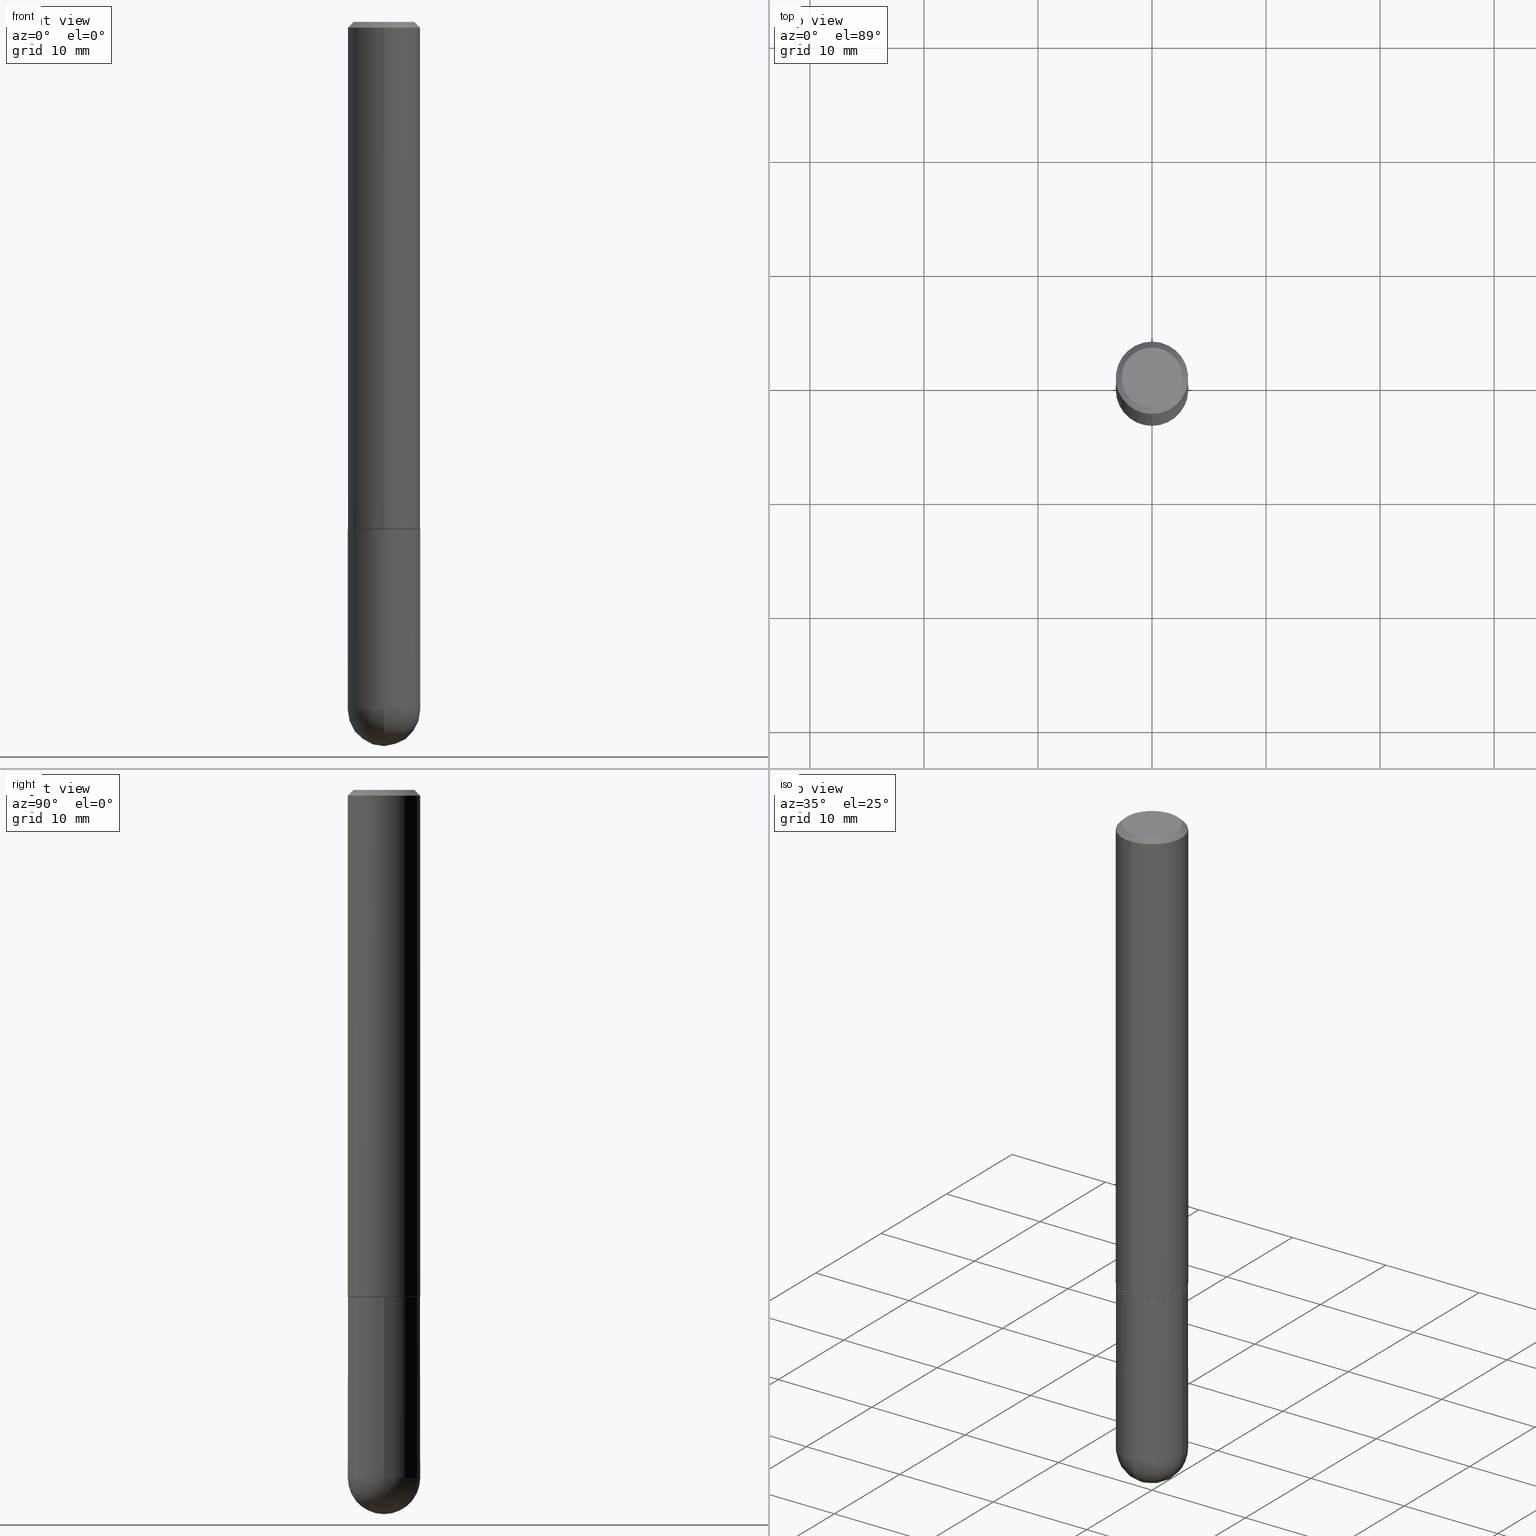
[diagram: canonical four-view strip — front | top / right | iso, engineering-drawing reading convention]
A machine part, canonical four-view strip (front | top / right | iso — engineering-drawing reading convention). The complete STEP part file that produces these views, byte-faithful:
ISO-10303-21;
HEADER;
FILE_DESCRIPTION (( 'STEP AP203' ),
    '1' );
FILE_NAME ('39332.STEP',
    '2024-02-21T19:34:02',
    ( '' ),
    ( '' ),
    'SwSTEP 2.0',
    'SolidWorks 2023',
    '' );
FILE_SCHEMA (( 'CONFIG_CONTROL_DESIGN' ));
ENDSEC;

DATA;
#1 = CARTESIAN_POINT ( 'NONE',  ( -8.658873720330540358E-16, -0.1240000000000061053, -1.749999999999999556 ) ) ;
#2 = APPROVAL_PERSON_ORGANIZATION ( #103, #196, #138 ) ;
#3 = DIRECTION ( 'NONE',  ( -2.445468806185136597E-29, 3.491481338843145583E-15, 1.000000000000000000 ) ) ;
#4 = EDGE_CURVE ( 'NONE', #107, #319, #363, .T. ) ;
#5 = LINE ( 'NONE', #217, #336 ) ;
#6 = LINE ( 'NONE', #159, #23 ) ;
#7 = DATE_AND_TIME ( #164, #308 ) ;
#8 = VECTOR ( 'NONE', #131, 39.37007874015748143 ) ;
#9 = APPROVAL ( #42, 'UNSPECIFIED' ) ;
#10 = EDGE_LOOP ( 'NONE', ( #160, #44, #104, #205 ) ) ;
#11 = EDGE_LOOP ( 'NONE', ( #32, #266, #256, #381, #195 ) ) ;
#12 = PERSON_AND_ORGANIZATION ( #101, #75 ) ;
#13 = VERTEX_POINT ( 'NONE', #334 ) ;
#14 = PERSON_AND_ORGANIZATION ( #101, #75 ) ;
#15 = ORIENTED_EDGE ( 'NONE', *, *, #401, .F. ) ;
#16 = AXIS2_PLACEMENT_3D ( 'NONE', #276, #337, #344 ) ;
#17 = AXIS2_PLACEMENT_3D ( 'NONE', #316, #33, #31 ) ;
#18 = CARTESIAN_POINT ( 'NONE',  ( -0.1250000000000000000, 8.881784197001252323E-16, -6.148668862818632227E-30 ) ) ;
#19 = DIRECTION ( 'NONE',  ( -6.982962677686265133E-15, -1.000000000000000000, 4.370956789862812472E-15 ) ) ;
#20 = DIRECTION ( 'NONE',  ( 2.445706133332774021E-29, -3.491141472859906642E-15, -1.000000000000000000 ) ) ;
#21 = EDGE_CURVE ( 'NONE', #353, #292, #305, .T. ) ;
#22 = VECTOR ( 'NONE', #280, 39.37007874015748143 ) ;
#23 = VECTOR ( 'NONE', #323, 39.37007874015748143 ) ;
#24 = CARTESIAN_POINT ( 'NONE',  ( 5.807988414689700538E-29, -8.292268179752471696E-15, -2.375000000000000000 ) ) ;
#25 = SHAPE_DEFINITION_REPRESENTATION ( #367, #81 ) ;
#26 = CARTESIAN_POINT ( 'NONE',  ( 4.891412266665553962E-31, -6.982282945719821124E-17, -0.02000000000000002470 ) ) ;
#27 = SPHERICAL_SURFACE ( 'NONE', #67, 0.1250000000000001943 ) ;
#28 = AXIS2_PLACEMENT_3D ( 'NONE', #174, #306, #19 ) ;
#29 = CARTESIAN_POINT ( 'NONE',  ( 7.332110811570579257E-16, 0.1049999999999999961, -3.559164163891591830E-16 ) ) ;
#30 = EDGE_LOOP ( 'NONE', ( #165, #140 ) ) ;
#31 = DIRECTION ( 'NONE',  ( 1.000000000000000000, -6.982962677686266711E-15, 4.876176775795935793E-29 ) ) ;
#32 = ORIENTED_EDGE ( 'NONE', *, *, #21, .F. ) ;
#33 = DIRECTION ( 'NONE',  ( -2.445468806185136597E-29, 3.491481338843145583E-15, 1.000000000000000000 ) ) ;
#34 = ORIENTED_EDGE ( 'NONE', *, *, #43, .T. ) ;
#35 = EDGE_CURVE ( 'NONE', #13, #328, #175, .T. ) ;
#36 = AXIS2_PLACEMENT_3D ( 'NONE', #24, #248, #343 ) ;
#37 = LOCAL_TIME ( 14, 34, 2.000000000000000000, #86 ) ;
#38 = FACE_OUTER_BOUND ( 'NONE', #11, .T. ) ;
#39 = CARTESIAN_POINT ( 'NONE',  ( 8.728703347107837333E-16, 0.1249999999999999306, -0.02000000000000046185 ) ) ;
#40 = DATE_AND_TIME ( #79, #234 ) ;
#41 = ORIENTED_EDGE ( 'NONE', *, *, #206, .F. ) ;
#42 = APPROVAL_STATUS ( 'not_yet_approved' ) ;
#43 = EDGE_CURVE ( 'NONE', #326, #13, #137, .T. ) ;
#44 = ORIENTED_EDGE ( 'NONE', *, *, #72, .T. ) ;
#45 = APPLICATION_PROTOCOL_DEFINITION ( 'international standard', 'config_control_design', 1994, #355 ) ;
#46 = ORIENTED_EDGE ( 'NONE', *, *, #65, .F. ) ;
#47 = EDGE_LOOP ( 'NONE', ( #125, #299, #171, #395 ) ) ;
#48 = PERSON_AND_ORGANIZATION ( #101, #75 ) ;
#49 = ORIENTED_EDGE ( 'NONE', *, *, #330, .F. ) ;
#50 = CIRCLE ( 'NONE', #383, 0.1250000000000000000 ) ;
#51 = UNCERTAINTY_MEASURE_WITH_UNIT (LENGTH_MEASURE( 1.000000000000000082E-05 ), #203, 'distance_accuracy_value', 'NONE');
#52 = CARTESIAN_POINT ( 'NONE',  ( 0.1250000000000000000, -8.074050596074771916E-15, -2.375000000000000000 ) ) ;
#53 = DATE_AND_TIME ( #88, #37 ) ;
#54 = ADVANCED_FACE ( 'NONE', ( #407 ), #376, .F. ) ;
#55 = DIRECTION ( 'NONE',  ( -1.000000000000000000, 6.982962677686265922E-15, -4.883557194083112901E-29 ) ) ;
#56 = FACE_OUTER_BOUND ( 'NONE', #359, .T. ) ;
#57 = AXIS2_PLACEMENT_3D ( 'NONE', #26, #307, #148 ) ;
#58 = AXIS2_PLACEMENT_3D ( 'NONE', #153, #410, #379 ) ;
#59 = FACE_OUTER_BOUND ( 'NONE', #264, .T. ) ;
#60 = DIRECTION ( 'NONE',  ( -2.445706133332774021E-29, 3.491141472859906642E-15, 1.000000000000000000 ) ) ;
#61 = CARTESIAN_POINT ( 'NONE',  ( 4.279570410823989044E-29, -6.110092342975505460E-15, -1.750000000000000222 ) ) ;
#62 = CIRCLE ( 'NONE', #322, 0.1250000000000000000 ) ;
#63 = FACE_OUTER_BOUND ( 'NONE', #272, .T. ) ;
#64 = CYLINDRICAL_SURFACE ( 'NONE', #17, 0.1250000000000000000 ) ;
#65 = EDGE_CURVE ( 'NONE', #107, #326, #146, .T. ) ;
#66 = CARTESIAN_POINT ( 'NONE',  ( 5.476868636775814291E-29, -8.766450547892521992E-15, -2.375000000000000000 ) ) ;
#67 = AXIS2_PLACEMENT_3D ( 'NONE', #66, #223, #350 ) ;
#68 = SECURITY_CLASSIFICATION ( '', '', #340 ) ;
#69 = PLANE ( 'NONE',  #297 ) ;
#70 = LINE ( 'NONE', #162, #8 ) ;
#71 = ORIENTED_EDGE ( 'NONE', *, *, #375, .F. ) ;
#72 = EDGE_CURVE ( 'NONE', #326, #412, #241, .T. ) ;
#73 = DIRECTION ( 'NONE',  ( -4.851104656540959542E-15, -0.7071067811865493491, -0.7071067811865457964 ) ) ;
#74 = EDGE_LOOP ( 'NONE', ( #393, #133, #303, #136 ) ) ;
#75 = ORGANIZATION ( 'UNSPECIFIED', 'UNSPECIFIED', '' ) ;
#76 = ORIENTED_EDGE ( 'NONE', *, *, #21, .T. ) ;
#77 = EDGE_CURVE ( 'NONE', #226, #198, #390, .T. ) ;
#78 = ORIENTED_EDGE ( 'NONE', *, *, #72, .F. ) ;
#79 = CALENDAR_DATE ( 2024, 21, 2 ) ;
#80 = DIRECTION ( 'NONE',  ( -6.982962677686265922E-15, -1.000000000000000000, 4.406206441393973340E-15 ) ) ;
#81 = ADVANCED_BREP_SHAPE_REPRESENTATION ( '39332', ( #384, #110, #342 ), #404 ) ;
#82 = AXIS2_PLACEMENT_3D ( 'NONE', #211, #275, #339 ) ;
#83 = CARTESIAN_POINT ( 'NONE',  ( 5.807988414689700538E-29, -8.292268179752471696E-15, -2.375000000000000000 ) ) ;
#84 = AXIS2_PLACEMENT_3D ( 'NONE', #349, #97, #252 ) ;
#85 = CARTESIAN_POINT ( 'NONE',  ( 4.891412266665553962E-31, -6.982282945719821124E-17, -0.02000000000000002470 ) ) ;
#86 = COORDINATED_UNIVERSAL_TIME_OFFSET ( 5, 0, .BEHIND. ) ;
#87 = CARTESIAN_POINT ( 'NONE',  ( 4.891412266665553962E-31, -6.982282945719821124E-17, -0.02000000000000002470 ) ) ;
#88 = CALENDAR_DATE ( 2024, 21, 2 ) ;
#89 = CARTESIAN_POINT ( 'NONE',  ( 5.476868636775814291E-29, -8.766450547892521992E-15, -2.375000000000000000 ) ) ;
#90 = CONICAL_SURFACE ( 'NONE', #191, 0.1250000000000000000, 0.7853981633974473908 ) ;
#91 = DIRECTION ( 'NONE',  ( -7.105427357601000281E-15, -1.000000000000000000, 0.000000000000000000 ) ) ;
#92 = ADVANCED_FACE ( 'NONE', ( #120 ), #208, .T. ) ;
#93 = CYLINDRICAL_SURFACE ( 'NONE', #161, 0.1250000000000000000 ) ;
#94 = DIRECTION ( 'NONE',  ( -2.445706133332774021E-29, 3.491141472859906642E-15, 1.000000000000000000 ) ) ;
#95 = AXIS2_PLACEMENT_3D ( 'NONE', #61, #183, #315 ) ;
#96 = CC_DESIGN_DATE_AND_TIME_ASSIGNMENT ( #309, #212, ( #68 ) ) ;
#97 = DIRECTION ( 'NONE',  ( -2.445468806185136597E-29, 3.491481338843145583E-15, 1.000000000000000000 ) ) ;
#98 = DIRECTION ( 'NONE',  ( 4.937700262164543309E-15, 0.7071067811865444641, -0.7071067811865506814 ) ) ;
#99 = CYLINDRICAL_SURFACE ( 'NONE', #200, 0.1250000000000001110 ) ;
#100 = ORIENTED_EDGE ( 'NONE', *, *, #265, .T. ) ;
#101 = PERSON ( 'UNSPECIFIED', 'UNSPECIFIED', 'UNSPECIFIED', ('UNSPECIFIED'), ('UNSPECIFIED'), ('UNSPECIFIED') ) ;
#102 = AXIS2_PLACEMENT_3D ( 'NONE', #374, #144, #244 ) ;
#103 = PERSON_AND_ORGANIZATION ( #101, #75 ) ;
#104 = ORIENTED_EDGE ( 'NONE', *, *, #147, .F. ) ;
#105 = CARTESIAN_POINT ( 'NONE',  ( 4.279570410823989044E-29, -6.110092342975505460E-15, -1.750000000000000222 ) ) ;
#106 = DIRECTION ( 'NONE',  ( -2.445468806185136877E-29, 3.491481338843145188E-15, 1.000000000000000000 ) ) ;
#107 = VERTEX_POINT ( 'NONE', #142 ) ;
#108 = APPROVAL_ROLE ( '' ) ;
#109 = CIRCLE ( 'NONE', #58, 0.1049999999999999961 ) ;
#110 = MANIFOLD_SOLID_BREP ( 'Body-Move/Copy2[2]', #278 ) ;
#111 = ORIENTED_EDGE ( 'NONE', *, *, #210, .F. ) ;
#112 = CARTESIAN_POINT ( 'NONE',  ( 8.030407079339207309E-16, 0.1049999999999999961, -3.452629781280282099E-16 ) ) ;
#113 = DIMENSIONAL_EXPONENTS ( 1.000000000000000000, 0.000000000000000000, 0.000000000000000000, 0.000000000000000000, 0.000000000000000000, 0.000000000000000000, 0.000000000000000000 ) ;
#114 = CARTESIAN_POINT ( 'NONE',  ( 4.279985733332354606E-29, -6.109497577504836920E-15, -1.750000000000000222 ) ) ;
#115 = APPROVAL_DATE_TIME ( #40, #196 ) ;
#116 = DIRECTION ( 'NONE',  ( 6.982962677686265133E-15, 1.000000000000000000, 0.000000000000000000 ) ) ;
#117 = CIRCLE ( 'NONE', #347, 0.1250000000000000000 ) ;
#118 = EDGE_CURVE ( 'NONE', #231, #226, #370, .T. ) ;
#119 = DIRECTION ( 'NONE',  ( -6.982962677686265922E-15, -1.000000000000000000, 4.406206441393973340E-15 ) ) ;
#120 = FACE_OUTER_BOUND ( 'NONE', #74, .T. ) ;
#121 = CARTESIAN_POINT ( 'NONE',  ( 8.881784197001260212E-16, 0.1250000000000001110, -4.363926841074887247E-16 ) ) ;
#122 = AXIS2_PLACEMENT_3D ( 'NONE', #85, #20, #145 ) ;
#123 = DIRECTION ( 'NONE',  ( 6.982962677686265922E-15, 1.000000000000000000, -3.491141472859906642E-15 ) ) ;
#124 = DIRECTION ( 'NONE',  ( -6.982962677686265922E-15, -1.000000000000000000, 4.406206441393973340E-15 ) ) ;
#125 = ORIENTED_EDGE ( 'NONE', *, *, #389, .F. ) ;
#126 = CC_DESIGN_PERSON_AND_ORGANIZATION_ASSIGNMENT ( #333, #173, ( #398 ) ) ;
#127 = DIRECTION ( 'NONE',  ( 2.445706133332773460E-29, -3.491141472859906642E-15, -1.000000000000000000 ) ) ;
#128 = CC_DESIGN_APPROVAL ( #9, ( #394 ) ) ;
#129 = CARTESIAN_POINT ( 'NONE',  ( -8.881784197000694204E-16, -0.1250000000000086320, -2.374999999999999556 ) ) ;
#130 = FACE_OUTER_BOUND ( 'NONE', #10, .T. ) ;
#131 = DIRECTION ( 'NONE',  ( -4.937700262164969294E-15, -0.7071067811866054154, 0.7071067811864896191 ) ) ;
#132 = VERTEX_POINT ( 'NONE', #214 ) ;
#133 = ORIENTED_EDGE ( 'NONE', *, *, #206, .T. ) ;
#134 = ADVANCED_FACE ( 'NONE', ( #59 ), #176, .T. ) ;
#135 = APPLICATION_PROTOCOL_DEFINITION ( 'international standard', 'config_control_design', 1994, #273 ) ;
#136 = ORIENTED_EDGE ( 'NONE', *, *, #77, .F. ) ;
#137 = CIRCLE ( 'NONE', #102, 0.1250000000000002498 ) ;
#138 = APPROVAL_ROLE ( '' ) ;
#139 = CC_DESIGN_SECURITY_CLASSIFICATION ( #68, ( #398 ) ) ;
#140 = ORIENTED_EDGE ( 'NONE', *, *, #172, .T. ) ;
#141 = CALENDAR_DATE ( 2024, 21, 2 ) ;
#142 = CARTESIAN_POINT ( 'NONE',  ( 8.846257060213682142E-16, 0.1239999999999938790, -1.750000000000000666 ) ) ;
#143 = EDGE_CURVE ( 'NONE', #353, #226, #290, .T. ) ;
#144 = DIRECTION ( 'NONE',  ( -2.445706133332774021E-29, 3.491141472859906642E-15, 1.000000000000000000 ) ) ;
#145 = DIRECTION ( 'NONE',  ( 6.982962677686265922E-15, 1.000000000000000000, -3.483106191921935554E-15 ) ) ;
#146 = LINE ( 'NONE', #246, #22 ) ;
#147 = EDGE_CURVE ( 'NONE', #328, #412, #213, .T. ) ;
#148 = DIRECTION ( 'NONE',  ( -6.982962677686265922E-15, -1.000000000000000000, 3.483106191921935554E-15 ) ) ;
#149 = CARTESIAN_POINT ( 'NONE',  ( 8.881784197001479121E-16, 0.1249999999999941019, -1.749000000000000554 ) ) ;
#150 = FACE_OUTER_BOUND ( 'NONE', #154, .T. ) ;
#151 = CARTESIAN_POINT ( 'NONE',  ( 5.807988414689700538E-29, -8.292268179752471696E-15, -2.375000000000000000 ) ) ;
#152 = ORIENTED_EDGE ( 'NONE', *, *, #65, .T. ) ;
#153 = CARTESIAN_POINT ( 'NONE',  ( -5.211035859266013735E-46, 7.438532028397375271E-32, 2.130687652226194918E-17 ) ) ;
#154 = EDGE_LOOP ( 'NONE', ( #46, #163, #185, #262 ) ) ;
#155 = AXIS2_PLACEMENT_3D ( 'NONE', #114, #368, #80 ) ;
#156 = CC_DESIGN_APPROVAL ( #196, ( #398 ) ) ;
#157 = ADVANCED_FACE ( 'NONE', ( #56 ), #90, .T. ) ;
#158 = DATE_AND_TIME ( #194, #364 ) ;
#159 = CARTESIAN_POINT ( 'NONE',  ( 0.1250000000000000000, -8.728703347107833388E-16, 6.095220969744919741E-30 ) ) ;
#160 = ORIENTED_EDGE ( 'NONE', *, *, #210, .T. ) ;
#161 = AXIS2_PLACEMENT_3D ( 'NONE', #388, #3, #318 ) ;
#162 = CARTESIAN_POINT ( 'NONE',  ( -8.658873720330540358E-16, -0.1240000000000061053, -1.749999999999999556 ) ) ;
#163 = ORIENTED_EDGE ( 'NONE', *, *, #4, .T. ) ;
#164 = CALENDAR_DATE ( 2024, 21, 2 ) ;
#165 = ORIENTED_EDGE ( 'NONE', *, *, #257, .T. ) ;
#166 = MECHANICAL_CONTEXT ( 'NONE', #273, 'mechanical' ) ;
#167 = ORIENTED_EDGE ( 'NONE', *, *, #147, .T. ) ;
#168 = PRODUCT ( '39332', '39332', '', ( #166 ) ) ;
#169 = COORDINATED_UNIVERSAL_TIME_OFFSET ( 5, 0, .BEHIND. ) ;
#170 = DESIGN_CONTEXT ( 'detailed design', #355, 'design' ) ;
#171 = ORIENTED_EDGE ( 'NONE', *, *, #330, .T. ) ;
#172 = EDGE_CURVE ( 'NONE', #296, #397, #269, .T. ) ;
#173 = PERSON_AND_ORGANIZATION_ROLE ( 'creator' ) ;
#174 = CARTESIAN_POINT ( 'NONE',  ( 4.277540027199021844E-29, -6.106006436031975850E-15, -1.749000000000000110 ) ) ;
#175 = LINE ( 'NONE', #372, #254 ) ;
#176 = CONICAL_SURFACE ( 'NONE', #233, 0.1239999999999999991, 0.7853981633975336552 ) ;
#177 = DIRECTION ( 'NONE',  ( 6.982962677686265922E-15, 1.000000000000000000, -3.483106191921935554E-15 ) ) ;
#178 = CIRCLE ( 'NONE', #84, 0.1250000000000000000 ) ;
#179 = ADVANCED_FACE ( 'NONE', ( #216 ), #402, .T. ) ;
#180 = PERSON_AND_ORGANIZATION ( #101, #75 ) ;
#181 = DIRECTION ( 'NONE',  ( 1.000000000000000000, -6.982962677686270655E-15, 0.000000000000000000 ) ) ;
#182 = CARTESIAN_POINT ( 'NONE',  ( 5.476868636775814291E-29, -8.766450547892521992E-15, -2.375000000000000000 ) ) ;
#183 = DIRECTION ( 'NONE',  ( -2.445468806185136597E-29, 3.491481338843145583E-15, 1.000000000000000000 ) ) ;
#184 = AXIS2_PLACEMENT_3D ( 'NONE', #83, #207, #181 ) ;
#185 = ORIENTED_EDGE ( 'NONE', *, *, #401, .T. ) ;
#186 = CC_DESIGN_PERSON_AND_ORGANIZATION_ASSIGNMENT ( #14, #267, ( #168 ) ) ;
#187 = CARTESIAN_POINT ( 'NONE',  ( 4.279985733332354606E-29, -6.109497577504836920E-15, -1.750000000000000222 ) ) ;
#188 = CARTESIAN_POINT ( 'NONE',  ( -8.575622497214408537E-16, -0.1250000000000000555, -0.01999999999999959102 ) ) ;
#189 = ORIENTED_EDGE ( 'NONE', *, *, #4, .F. ) ;
#190 = DIRECTION ( 'NONE',  ( -2.445706133332773460E-29, 3.491141472859906642E-15, 1.000000000000000000 ) ) ;
#191 = AXIS2_PLACEMENT_3D ( 'NONE', #87, #282, #177 ) ;
#192 = CIRCLE ( 'NONE', #377, 0.1250000000000001943 ) ;
#193 = DIRECTION ( 'NONE',  ( -6.982962677686265922E-15, -1.000000000000000000, 3.483106191921935554E-15 ) ) ;
#194 = CALENDAR_DATE ( 2024, 21, 2 ) ;
#195 = ORIENTED_EDGE ( 'NONE', *, *, #354, .F. ) ;
#196 = APPROVAL ( #365, 'UNSPECIFIED' ) ;
#197 =( NAMED_UNIT ( * ) SI_UNIT ( $, .STERADIAN. ) SOLID_ANGLE_UNIT ( ) );
#198 = VERTEX_POINT ( 'NONE', #52 ) ;
#199 = CLOSED_SHELL ( 'NONE', ( #271, #302, #92, #54, #288 ) ) ;
#200 = AXIS2_PLACEMENT_3D ( 'NONE', #260, #224, #284 ) ;
#201 = COORDINATED_UNIVERSAL_TIME_OFFSET ( 5, 0, .BEHIND. ) ;
#202 = ORIENTED_EDGE ( 'NONE', *, *, #265, .F. ) ;
#203 =( CONVERSION_BASED_UNIT ( 'INCH', #329 ) LENGTH_UNIT ( ) NAMED_UNIT ( #113 ) );
#204 = ORIENTED_EDGE ( 'NONE', *, *, #354, .T. ) ;
#205 = ORIENTED_EDGE ( 'NONE', *, *, #35, .F. ) ;
#206 = EDGE_CURVE ( 'NONE', #231, #391, #192, .T. ) ;
#207 = DIRECTION ( 'NONE',  ( -2.445468806185136597E-29, 3.491481338843145583E-15, 1.000000000000000000 ) ) ;
#208 = SPHERICAL_SURFACE ( 'NONE', #314, 0.1250000000000001943 ) ;
#209 = APPROVAL_DATE_TIME ( #53, #360 ) ;
#210 = EDGE_CURVE ( 'NONE', #13, #326, #352, .T. ) ;
#211 = CARTESIAN_POINT ( 'NONE',  ( 8.728703347108260359E-16, 0.1249999999999938799, -1.750000000000000666 ) ) ;
#212 = DATE_TIME_ROLE ( 'classification_date' ) ;
#213 = CIRCLE ( 'NONE', #57, 0.1250000000000000000 ) ;
#214 = CARTESIAN_POINT ( 'NONE',  ( 0.1250000000000000000, -6.982962677686288010E-15, -1.750000000000000222 ) ) ;
#215 = APPROVAL_PERSON_ORGANIZATION ( #180, #360, #274 ) ;
#216 = FACE_OUTER_BOUND ( 'NONE', #238, .T. ) ;
#217 = CARTESIAN_POINT ( 'NONE',  ( 8.728703347107837333E-16, 0.1249999999999999306, -0.02000000000000046185 ) ) ;
#218 = ADVANCED_FACE ( 'NONE', ( #403 ), #255, .T. ) ;
#219 = DIRECTION ( 'NONE',  ( -2.445468806185136597E-29, 3.491481338843145583E-15, 1.000000000000000000 ) ) ;
#220 = AXIS2_PLACEMENT_3D ( 'NONE', #89, #239, #91 ) ;
#221 = AXIS2_PLACEMENT_3D ( 'NONE', #293, #94, #222 ) ;
#222 = DIRECTION ( 'NONE',  ( -6.982962677686265922E-15, -1.000000000000000000, 4.406206441393973340E-15 ) ) ;
#223 = DIRECTION ( 'NONE',  ( -1.000000000000000000, 6.982962677686265922E-15, -4.883557194083112901E-29 ) ) ;
#224 = DIRECTION ( 'NONE',  ( -2.445706133332774021E-29, 3.491141472859906642E-15, 1.000000000000000000 ) ) ;
#225 = PRODUCT_RELATED_PRODUCT_CATEGORY ( 'detail', '', ( #168 ) ) ;
#226 = VERTEX_POINT ( 'NONE', #129 ) ;
#227 = VECTOR ( 'NONE', #106, 39.37007874015748143 ) ;
#228 = CARTESIAN_POINT ( 'NONE',  ( 8.728703347108403340E-16, 0.1249999999999915623, -2.375000000000000888 ) ) ;
#229 = ORIENTED_EDGE ( 'NONE', *, *, #382, .F. ) ;
#230 = DIRECTION ( 'NONE',  ( -2.445468806185136597E-29, 3.491481338843145583E-15, 1.000000000000000000 ) ) ;
#231 = VERTEX_POINT ( 'NONE', #320 ) ;
#232 = ORIENTED_EDGE ( 'NONE', *, *, #324, .T. ) ;
#233 = AXIS2_PLACEMENT_3D ( 'NONE', #310, #369, #119 ) ;
#234 = LOCAL_TIME ( 14, 34, 2.000000000000000000, #356 ) ;
#235 = ORIENTED_EDGE ( 'NONE', *, *, #312, .T. ) ;
#236 = CARTESIAN_POINT ( 'NONE',  ( 0.000000000000000000, 0.000000000000000000, 0.000000000000000000 ) ) ;
#237 = ADVANCED_FACE ( 'NONE', ( #380 ), #253, .F. ) ;
#238 = EDGE_LOOP ( 'NONE', ( #78, #34, #331, #301 ) ) ;
#239 = DIRECTION ( 'NONE',  ( -1.000000000000000000, 7.105427357601001070E-15, -4.926315508542082329E-29 ) ) ;
#240 = APPROVAL_PERSON_ORGANIZATION ( #327, #9, #108 ) ;
#241 = LINE ( 'NONE', #121, #335 ) ;
#242 = CC_DESIGN_PERSON_AND_ORGANIZATION_ASSIGNMENT ( #48, #245, ( #68 ) ) ;
#243 = PERSON_AND_ORGANIZATION ( #101, #75 ) ;
#244 = DIRECTION ( 'NONE',  ( -6.982962677686265133E-15, -1.000000000000000000, 4.370956789862812472E-15 ) ) ;
#245 = PERSON_AND_ORGANIZATION_ROLE ( 'classification_officer' ) ;
#246 = CARTESIAN_POINT ( 'NONE',  ( 8.810729923425669213E-16, 0.1239999999999938790, -1.750000000000000666 ) ) ;
#247 = CIRCLE ( 'NONE', #221, 0.1239999999999999991 ) ;
#248 = DIRECTION ( 'NONE',  ( -2.445468806185136597E-29, 3.491481338843145583E-15, 1.000000000000000000 ) ) ;
#249 = CIRCLE ( 'NONE', #95, 0.1250000000000000000 ) ;
#250 = DIRECTION ( 'NONE',  ( -6.982962677686265922E-15, -1.000000000000000000, 3.491141472859906642E-15 ) ) ;
#251 = ADVANCED_FACE ( 'NONE', ( #63 ), #69, .F. ) ;
#252 = DIRECTION ( 'NONE',  ( 1.000000000000000000, -6.982962677686270655E-15, 0.000000000000000000 ) ) ;
#253 = PLANE ( 'NONE',  #304 ) ;
#254 = VECTOR ( 'NONE', #281, 39.37007874015748143 ) ;
#255 = CONICAL_SURFACE ( 'NONE', #122, 0.1250000000000000000, 0.7853981633974473908 ) ;
#256 = ORIENTED_EDGE ( 'NONE', *, *, #77, .T. ) ;
#257 = EDGE_CURVE ( 'NONE', #397, #296, #109, .T. ) ;
#258 = CARTESIAN_POINT ( 'NONE',  ( -0.1250000000000000000, -6.313001841663863345E-15, -1.750000000000000222 ) ) ;
#259 = EDGE_LOOP ( 'NONE', ( #100, #76, #71, #229, #232 ) ) ;
#260 = CARTESIAN_POINT ( 'NONE',  ( 0.000000000000000000, 0.000000000000000000, 0.000000000000000000 ) ) ;
#261 =( NAMED_UNIT ( * ) PLANE_ANGLE_UNIT ( ) SI_UNIT ( $, .RADIAN. ) );
#262 = ORIENTED_EDGE ( 'NONE', *, *, #43, .F. ) ;
#263 = DIRECTION ( 'NONE',  ( 1.000000000000000000, -6.982962677686262766E-15, 0.000000000000000000 ) ) ;
#264 = EDGE_LOOP ( 'NONE', ( #235, #152, #111, #15 ) ) ;
#265 = EDGE_CURVE ( 'NONE', #391, #353, #178, .T. ) ;
#266 = ORIENTED_EDGE ( 'NONE', *, *, #143, .T. ) ;
#267 = PERSON_AND_ORGANIZATION_ROLE ( 'design_owner' ) ;
#268 = ORIENTED_EDGE ( 'NONE', *, *, #375, .T. ) ;
#269 = CIRCLE ( 'NONE', #321, 0.1049999999999999961 ) ;
#270 = CC_DESIGN_APPROVAL ( #360, ( #68 ) ) ;
#271 = ADVANCED_FACE ( 'NONE', ( #289 ), #64, .T. ) ;
#272 = EDGE_LOOP ( 'NONE', ( #286, #189 ) ) ;
#273 = APPLICATION_CONTEXT ( 'configuration controlled 3d designs of mechanical parts and assemblies' ) ;
#274 = APPROVAL_ROLE ( '' ) ;
#275 = DIRECTION ( 'NONE',  ( 2.438088387897960049E-29, -3.491481338843145188E-15, -1.000000000000000000 ) ) ;
#276 = CARTESIAN_POINT ( 'NONE',  ( 0.000000000000000000, 0.000000000000000000, 0.000000000000000000 ) ) ;
#277 = CC_DESIGN_DATE_AND_TIME_ASSIGNMENT ( #158, #396, ( #394 ) ) ;
#278 = CLOSED_SHELL ( 'NONE', ( #134, #338, #157, #218, #179, #371, #251, #237 ) ) ;
#279 = AXIS2_PLACEMENT_3D ( 'NONE', #285, #411, #124 ) ;
#280 = DIRECTION ( 'NONE',  ( 5.024295867788490741E-15, 0.7071067811866103003, 0.7071067811864847341 ) ) ;
#281 = DIRECTION ( 'NONE',  ( -2.445706133332773740E-29, 3.491141472859906642E-15, 1.000000000000000000 ) ) ;
#282 = DIRECTION ( 'NONE',  ( 2.445706133332774021E-29, -3.491141472859906642E-15, -1.000000000000000000 ) ) ;
#283 = LOCAL_TIME ( 14, 34, 2.000000000000000000, #169 ) ;
#284 = DIRECTION ( 'NONE',  ( -6.982962677686266711E-15, -1.000000000000000000, 3.491141472859906642E-15 ) ) ;
#285 = CARTESIAN_POINT ( 'NONE',  ( 4.279985733332354606E-29, -6.109497577504836920E-15, -1.750000000000000222 ) ) ;
#286 = ORIENTED_EDGE ( 'NONE', *, *, #312, .F. ) ;
#287 = DIRECTION ( 'NONE',  ( 1.000000000000000000, -6.982962677686270655E-15, 0.000000000000000000 ) ) ;
#288 = ADVANCED_FACE ( 'NONE', ( #38 ), #93, .T. ) ;
#289 = FACE_OUTER_BOUND ( 'NONE', #259, .T. ) ;
#290 = CIRCLE ( 'NONE', #184, 0.1250000000000000000 ) ;
#291 = VECTOR ( 'NONE', #73, 39.37007874015748143 ) ;
#292 = VERTEX_POINT ( 'NONE', #258 ) ;
#293 = CARTESIAN_POINT ( 'NONE',  ( 4.279985733332354606E-29, -6.109497577504836920E-15, -1.750000000000000222 ) ) ;
#294 = COORDINATED_UNIVERSAL_TIME_OFFSET ( 5, 0, .BEHIND. ) ;
#295 = EDGE_CURVE ( 'NONE', #412, #328, #62, .T. ) ;
#296 = VERTEX_POINT ( 'NONE', #387 ) ;
#297 = AXIS2_PLACEMENT_3D ( 'NONE', #187, #190, #250 ) ;
#298 =( LENGTH_UNIT ( ) NAMED_UNIT ( * ) SI_UNIT ( $, .METRE. ) );
#299 = ORIENTED_EDGE ( 'NONE', *, *, #257, .F. ) ;
#300 = APPROVAL_DATE_TIME ( #7, #9 ) ;
#301 = ORIENTED_EDGE ( 'NONE', *, *, #295, .F. ) ;
#302 = ADVANCED_FACE ( 'NONE', ( #348 ), #27, .T. ) ;
#303 = ORIENTED_EDGE ( 'NONE', *, *, #324, .F. ) ;
#304 = AXIS2_PLACEMENT_3D ( 'NONE', #29, #127, #123 ) ;
#305 = LINE ( 'NONE', #18, #227 ) ;
#306 = DIRECTION ( 'NONE',  ( -2.445706133332774021E-29, 3.491141472859906642E-15, 1.000000000000000000 ) ) ;
#307 = DIRECTION ( 'NONE',  ( -2.445706133332774021E-29, 3.491141472859906642E-15, 1.000000000000000000 ) ) ;
#308 = LOCAL_TIME ( 14, 34, 2.000000000000000000, #201 ) ;
#309 = DATE_AND_TIME ( #141, #283 ) ;
#310 = CARTESIAN_POINT ( 'NONE',  ( 4.279985733332354606E-29, -6.109497577504836920E-15, -1.750000000000000222 ) ) ;
#311 = DIRECTION ( 'NONE',  ( -2.445706133332773740E-29, 3.491141472859906642E-15, 1.000000000000000000 ) ) ;
#312 = EDGE_CURVE ( 'NONE', #319, #107, #247, .T. ) ;
#313 = DIRECTION ( 'NONE',  ( 1.000000000000000000, -6.982962677686265922E-15, 4.883557194083112340E-29 ) ) ;
#314 = AXIS2_PLACEMENT_3D ( 'NONE', #406, #55, #341 ) ;
#315 = DIRECTION ( 'NONE',  ( 1.000000000000000000, -6.982962677686262766E-15, 0.000000000000000000 ) ) ;
#316 = CARTESIAN_POINT ( 'NONE',  ( 0.000000000000000000, 0.000000000000000000, 0.000000000000000000 ) ) ;
#317 = CC_DESIGN_PERSON_AND_ORGANIZATION_ASSIGNMENT ( #243, #405, ( #398 ) ) ;
#318 = DIRECTION ( 'NONE',  ( 1.000000000000000000, -6.982962677686266711E-15, 4.876176775795935793E-29 ) ) ;
#319 = VERTEX_POINT ( 'NONE', #1 ) ;
#320 = CARTESIAN_POINT ( 'NONE',  ( 5.787897026856327965E-29, -9.195231672753244292E-15, -2.500000000000000444 ) ) ;
#321 = AXIS2_PLACEMENT_3D ( 'NONE', #408, #60, #378 ) ;
#322 = AXIS2_PLACEMENT_3D ( 'NONE', #351, #385, #193 ) ;
#323 = DIRECTION ( 'NONE',  ( -2.445468806185136877E-29, 3.491481338843145188E-15, 1.000000000000000000 ) ) ;
#324 = EDGE_CURVE ( 'NONE', #198, #391, #117, .T. ) ;
#325 = DIRECTION ( 'NONE',  ( 1.000000000000000000, 0.000000000000000000, 0.000000000000000000 ) ) ;
#326 = VERTEX_POINT ( 'NONE', #149 ) ;
#327 = PERSON_AND_ORGANIZATION ( #101, #75 ) ;
#328 = VERTEX_POINT ( 'NONE', #188 ) ;
#329 = LENGTH_MEASURE_WITH_UNIT ( LENGTH_MEASURE( 0.02539999999999999897 ), #298 );
#330 = EDGE_CURVE ( 'NONE', #397, #412, #5, .T. ) ;
#331 = ORIENTED_EDGE ( 'NONE', *, *, #35, .T. ) ;
#332 = ORIENTED_EDGE ( 'NONE', *, *, #172, .F. ) ;
#333 = PERSON_AND_ORGANIZATION ( #101, #75 ) ;
#334 = CARTESIAN_POINT ( 'NONE',  ( -8.728703347107421208E-16, -0.1250000000000063560, -1.748999999999999666 ) ) ;
#335 = VECTOR ( 'NONE', #311, 39.37007874015748143 ) ;
#336 = VECTOR ( 'NONE', #98, 39.37007874015748143 ) ;
#337 = DIRECTION ( 'NONE',  ( -2.445706133332774021E-29, 3.491141472859906642E-15, 1.000000000000000000 ) ) ;
#338 = ADVANCED_FACE ( 'NONE', ( #130 ), #99, .T. ) ;
#339 = DIRECTION ( 'NONE',  ( -1.000000000000000000, 6.982962677686265922E-15, -4.876176775795935793E-29 ) ) ;
#340 = SECURITY_CLASSIFICATION_LEVEL ( 'unclassified' ) ;
#341 = DIRECTION ( 'NONE',  ( 6.982962677686265922E-15, 1.000000000000000000, -4.370956789862814839E-15 ) ) ;
#342 = AXIS2_PLACEMENT_3D ( 'NONE', #236, #361, #325 ) ;
#343 = DIRECTION ( 'NONE',  ( 1.000000000000000000, -6.982962677686270655E-15, 0.000000000000000000 ) ) ;
#344 = DIRECTION ( 'NONE',  ( -6.982962677686266711E-15, -1.000000000000000000, 3.491141472859906642E-15 ) ) ;
#345 = CARTESIAN_POINT ( 'NONE',  ( -0.1250000000000000000, -6.313001841663864134E-15, -2.375000000000000000 ) ) ;
#346 = CC_DESIGN_PERSON_AND_ORGANIZATION_ASSIGNMENT ( #12, #399, ( #394 ) ) ;
#347 = AXIS2_PLACEMENT_3D ( 'NONE', #151, #219, #287 ) ;
#348 = FACE_OUTER_BOUND ( 'NONE', #400, .T. ) ;
#349 = CARTESIAN_POINT ( 'NONE',  ( 5.807988414689700538E-29, -8.292268179752471696E-15, -2.375000000000000000 ) ) ;
#350 = DIRECTION ( 'NONE',  ( 6.982962677686265922E-15, 1.000000000000000000, -4.370956789862814839E-15 ) ) ;
#351 = CARTESIAN_POINT ( 'NONE',  ( 4.891412266665553962E-31, -6.982282945719821124E-17, -0.02000000000000002470 ) ) ;
#352 = CIRCLE ( 'NONE', #28, 0.1250000000000002498 ) ;
#353 = VERTEX_POINT ( 'NONE', #345 ) ;
#354 = EDGE_CURVE ( 'NONE', #292, #132, #249, .T. ) ;
#355 = APPLICATION_CONTEXT ( 'configuration controlled 3d designs of mechanical parts and assemblies' ) ;
#356 = COORDINATED_UNIVERSAL_TIME_OFFSET ( 5, 0, .BEHIND. ) ;
#357 = ORIENTED_EDGE ( 'NONE', *, *, #389, .T. ) ;
#358 = LINE ( 'NONE', #392, #291 ) ;
#359 = EDGE_LOOP ( 'NONE', ( #332, #357, #167, #49 ) ) ;
#360 = APPROVAL ( #373, 'UNSPECIFIED' ) ;
#361 = DIRECTION ( 'NONE',  ( 0.000000000000000000, 0.000000000000000000, 1.000000000000000000 ) ) ;
#362 = EDGE_LOOP ( 'NONE', ( #268, #204 ) ) ;
#363 = CIRCLE ( 'NONE', #155, 0.1239999999999999991 ) ;
#364 = LOCAL_TIME ( 14, 34, 2.000000000000000000, #294 ) ;
#365 = APPROVAL_STATUS ( 'not_yet_approved' ) ;
#366 = ORIENTED_EDGE ( 'NONE', *, *, #118, .T. ) ;
#367 = PRODUCT_DEFINITION_SHAPE ( 'NONE', 'NONE',  #394 ) ;
#368 = DIRECTION ( 'NONE',  ( -2.445706133332774021E-29, 3.491141472859906642E-15, 1.000000000000000000 ) ) ;
#369 = DIRECTION ( 'NONE',  ( -2.445706133332774021E-29, 3.491141472859906642E-15, 1.000000000000000000 ) ) ;
#370 = CIRCLE ( 'NONE', #220, 0.1250000000000001943 ) ;
#371 = ADVANCED_FACE ( 'NONE', ( #150 ), #409, .T. ) ;
#372 = CARTESIAN_POINT ( 'NONE',  ( -8.728703347107841277E-16, -0.1250000000000001110, 4.363926841074887247E-16 ) ) ;
#373 = APPROVAL_STATUS ( 'not_yet_approved' ) ;
#374 = CARTESIAN_POINT ( 'NONE',  ( 4.277540027199021844E-29, -6.106006436031975850E-15, -1.749000000000000110 ) ) ;
#375 = EDGE_CURVE ( 'NONE', #132, #292, #50, .T. ) ;
#376 = PLANE ( 'NONE',  #82 ) ;
#377 = AXIS2_PLACEMENT_3D ( 'NONE', #182, #313, #116 ) ;
#378 = DIRECTION ( 'NONE',  ( -6.982962677686265922E-15, -1.000000000000000000, 3.491141472859906248E-15 ) ) ;
#379 = DIRECTION ( 'NONE',  ( -6.982962677686265922E-15, -1.000000000000000000, 3.491141472859906248E-15 ) ) ;
#380 = FACE_OUTER_BOUND ( 'NONE', #30, .T. ) ;
#381 = ORIENTED_EDGE ( 'NONE', *, *, #382, .T. ) ;
#382 = EDGE_CURVE ( 'NONE', #198, #132, #6, .T. ) ;
#383 = AXIS2_PLACEMENT_3D ( 'NONE', #105, #230, #263 ) ;
#384 = MANIFOLD_SOLID_BREP ( 'Body-Move/Copy2[1]', #199 ) ;
#385 = DIRECTION ( 'NONE',  ( -2.445706133332774021E-29, 3.491141472859906642E-15, 1.000000000000000000 ) ) ;
#386 = ORIENTED_EDGE ( 'NONE', *, *, #143, .F. ) ;
#387 = CARTESIAN_POINT ( 'NONE',  ( -7.889572697437258181E-16, -0.1049999999999999961, 3.878767311725521021E-16 ) ) ;
#388 = CARTESIAN_POINT ( 'NONE',  ( 0.000000000000000000, 0.000000000000000000, 0.000000000000000000 ) ) ;
#389 = EDGE_CURVE ( 'NONE', #296, #328, #358, .T. ) ;
#390 = CIRCLE ( 'NONE', #36, 0.1250000000000000000 ) ;
#391 = VERTEX_POINT ( 'NONE', #228 ) ;
#392 = CARTESIAN_POINT ( 'NONE',  ( -8.575622497214408537E-16, -0.1250000000000000555, -0.01999999999999959102 ) ) ;
#393 = ORIENTED_EDGE ( 'NONE', *, *, #118, .F. ) ;
#394 = PRODUCT_DEFINITION ( 'UNKNOWN', '', #398, #170 ) ;
#395 = ORIENTED_EDGE ( 'NONE', *, *, #295, .T. ) ;
#396 = DATE_TIME_ROLE ( 'creation_date' ) ;
#397 = VERTEX_POINT ( 'NONE', #112 ) ;
#398 = PRODUCT_DEFINITION_FORMATION_WITH_SPECIFIED_SOURCE ( 'ANY', '', #168, .NOT_KNOWN. ) ;
#399 = PERSON_AND_ORGANIZATION_ROLE ( 'creator' ) ;
#400 = EDGE_LOOP ( 'NONE', ( #41, #366, #386, #202 ) ) ;
#401 = EDGE_CURVE ( 'NONE', #319, #13, #70, .T. ) ;
#402 = CYLINDRICAL_SURFACE ( 'NONE', #16, 0.1250000000000001110 ) ;
#403 = FACE_OUTER_BOUND ( 'NONE', #47, .T. ) ;
#404 =( GEOMETRIC_REPRESENTATION_CONTEXT ( 3 ) GLOBAL_UNCERTAINTY_ASSIGNED_CONTEXT ( ( #51 ) ) GLOBAL_UNIT_ASSIGNED_CONTEXT ( ( #203, #261, #197 ) ) REPRESENTATION_CONTEXT ( 'NONE', 'WORKASPACE' ) );
#405 = PERSON_AND_ORGANIZATION_ROLE ( 'design_supplier' ) ;
#406 = CARTESIAN_POINT ( 'NONE',  ( 5.476868636775814291E-29, -8.766450547892521992E-15, -2.375000000000000000 ) ) ;
#407 = FACE_OUTER_BOUND ( 'NONE', #362, .T. ) ;
#408 = CARTESIAN_POINT ( 'NONE',  ( -5.211035859266013735E-46, 7.438532028397375271E-32, 2.130687652226194918E-17 ) ) ;
#409 = CONICAL_SURFACE ( 'NONE', #279, 0.1239999999999999991, 0.7853981633975336552 ) ;
#410 = DIRECTION ( 'NONE',  ( -2.445706133332774021E-29, 3.491141472859906642E-15, 1.000000000000000000 ) ) ;
#411 = DIRECTION ( 'NONE',  ( -2.445706133332774021E-29, 3.491141472859906642E-15, 1.000000000000000000 ) ) ;
#412 = VERTEX_POINT ( 'NONE', #39 ) ;
ENDSEC;
END-ISO-10303-21;
